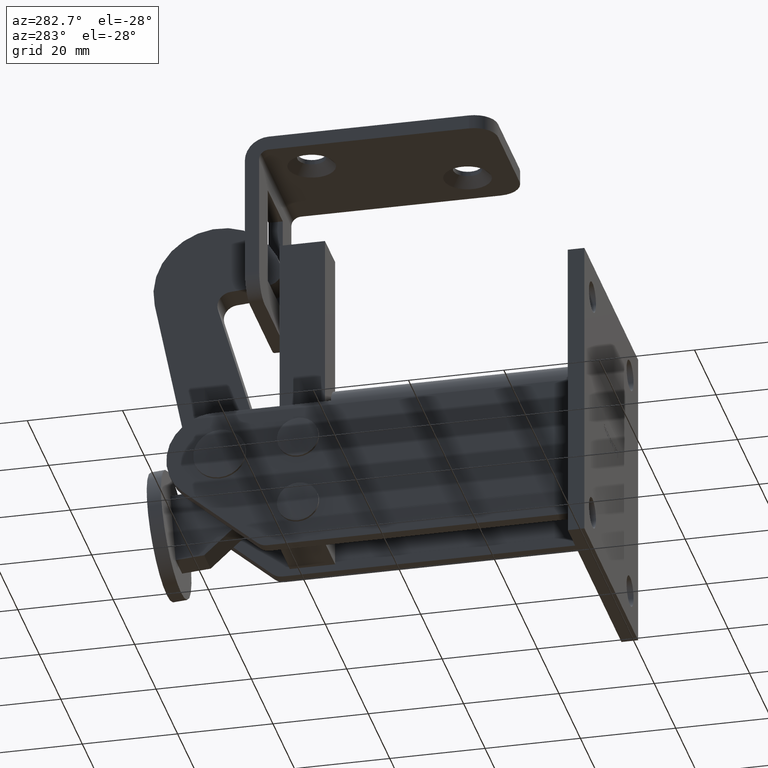
[diagram: clean part render]
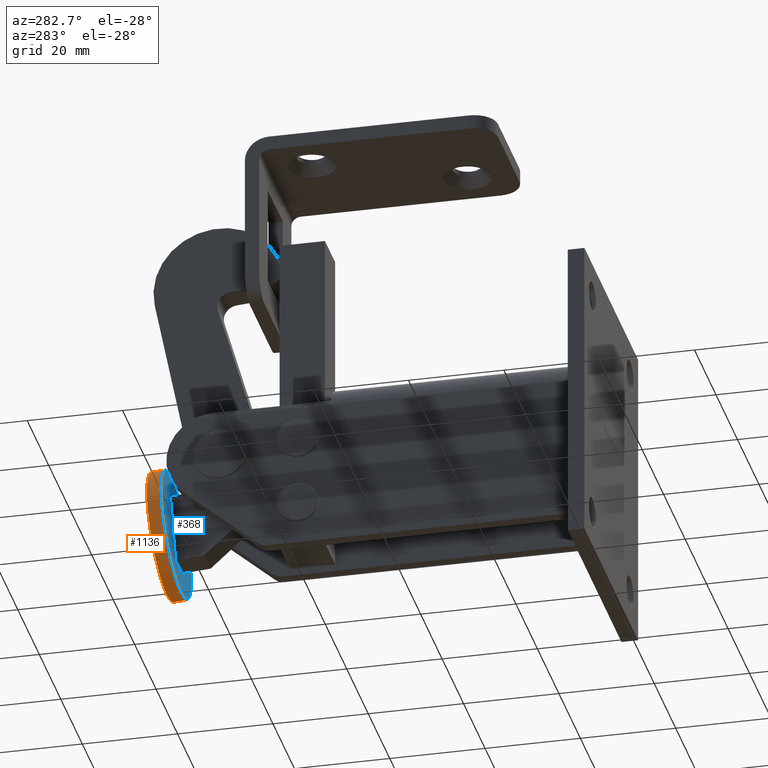
[diagram: same view with the hole feature highlighted: cylindrical wall and planar end face, labeled with their STEP entity ids]
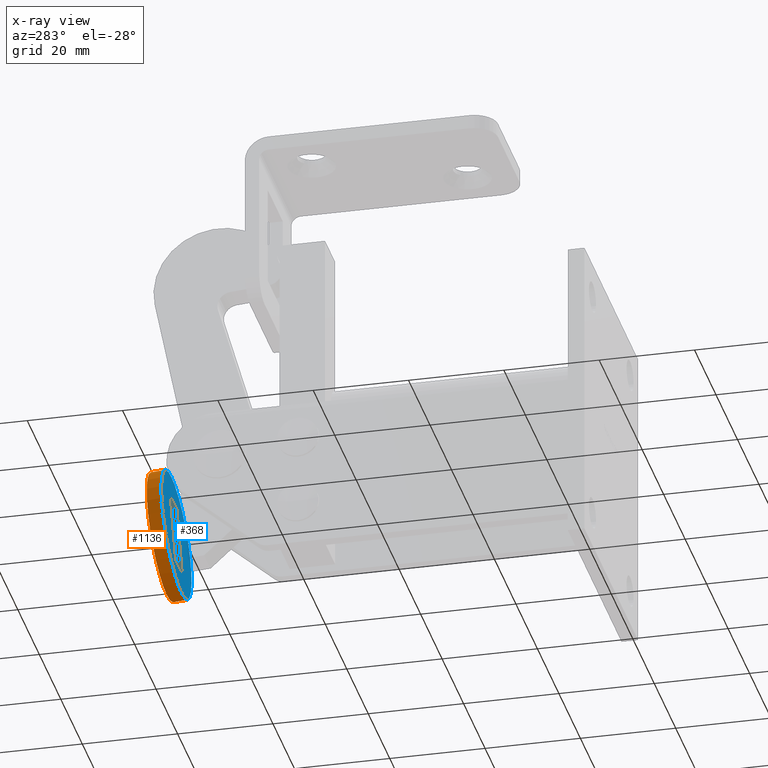
[diagram: x-ray of the same camera — body ghosted, the hole faces saturated]
A machine part, auxiliary view. The highlighted faces form one hole feature of diameter 27 mm: the cylindrical wall (entity #1136, orange) and its adjacent planar end face (entity #368, blue) — they share a circular edge in the B-rep.
The next image is the same camera in x-ray (body ghosted, the hole faces saturated) — the bore reads through the body.
Wall:
#519 = CIRCLE ( 'NONE', #12851, 13.50000000000000000 ) ;
#537 = EDGE_LOOP ( 'NONE', ( #10625 ) ) ;
#1136 = ADVANCED_FACE ( 'NONE', ( #4110, #11900 ), #4268, .T. ) ;
#2002 = DIRECTION ( 'NONE',  ( 0.0000000000000000000, -2.569960705150825400E-016, 1.000000000000000000 ) ) ;
#3406 = DIRECTION ( 'NONE',  ( 0.0000000000000000000, -2.569960705150825400E-016, 1.000000000000000000 ) ) ;
#3715 = CIRCLE ( 'NONE', #4985, 13.50000000000000000 ) ;
#4110 = FACE_OUTER_BOUND ( 'NONE', #537, .T. ) ;
#4268 = CYLINDRICAL_SURFACE ( 'NONE', #12435, 13.50000000000000200 ) ;
#4685 = CARTESIAN_POINT ( 'NONE',  ( 9.258329801554016100E-016, 30.00000000000000400, -12.02999999999998900 ) ) ;
#4985 = AXIS2_PLACEMENT_3D ( 'NONE', #6215, #9295, #2002 ) ;
#5675 = EDGE_LOOP ( 'NONE', ( #8829 ) ) ;
#5683 = DIRECTION ( 'NONE',  ( 0.0000000000000000000, 2.569960705150824900E-016, -1.000000000000000000 ) ) ;
#6215 = CARTESIAN_POINT ( 'NONE',  ( 9.258329801554016100E-016, 30.00000000000000400, -12.02999999999998900 ) ) ;
#6529 = DIRECTION ( 'NONE',  ( 0.0000000000000000000, 1.000000000000000000, 2.312964634635743000E-016 ) ) ;
#6531 = VERTEX_POINT ( 'NONE', #6574 ) ;
#6574 = CARTESIAN_POINT ( 'NONE',  ( 9.258329801554016100E-016, 30.00000000000000000, 1.470000000000011300 ) ) ;
#7985 = EDGE_CURVE ( 'NONE', #6531, #6531, #3715, .T. ) ;
#8648 = CARTESIAN_POINT ( 'NONE',  ( 9.258329801554016100E-016, 27.00000000000000000, 1.470000000000011300 ) ) ;
#8829 = ORIENTED_EDGE ( 'NONE', *, *, #11916, .T. ) ;
#9295 = DIRECTION ( 'NONE',  ( 0.0000000000000000000, 1.000000000000000000, 2.312964634635743000E-016 ) ) ;
#9480 = CARTESIAN_POINT ( 'NONE',  ( 9.258329801554016100E-016, 27.00000000000000400, -12.02999999999998900 ) ) ;
#10625 = ORIENTED_EDGE ( 'NONE', *, *, #7985, .F. ) ;
#11656 = DIRECTION ( 'NONE',  ( -0.0000000000000000000, -1.000000000000000000, -2.312964634635743000E-016 ) ) ;
#11900 = FACE_OUTER_BOUND ( 'NONE', #5675, .T. ) ;
#11916 = EDGE_CURVE ( 'NONE', #12605, #12605, #519, .T. ) ;
#12435 = AXIS2_PLACEMENT_3D ( 'NONE', #4685, #11656, #5683 ) ;
#12605 = VERTEX_POINT ( 'NONE', #8648 ) ;
#12851 = AXIS2_PLACEMENT_3D ( 'NONE', #9480, #6529, #3406 ) ;
End face:
#368 = ADVANCED_FACE ( 'NONE', ( #7776, #12093 ), #2790, .F. ) ;
#519 = CIRCLE ( 'NONE', #12851, 13.50000000000000000 ) ;
#688 = EDGE_LOOP ( 'NONE', ( #1713, #6820, #8253, #11054 ) ) ;
#927 = LINE ( 'NONE', #13238, #5063 ) ;
#1237 = CARTESIAN_POINT ( 'NONE',  ( 3.000000000000000000, 27.00000000000000700, -19.52999999999999000 ) ) ;
#1713 = ORIENTED_EDGE ( 'NONE', *, *, #11207, .F. ) ;
#1795 = LINE ( 'NONE', #4895, #9593 ) ;
#1811 = CARTESIAN_POINT ( 'NONE',  ( 9.258329801554016100E-016, 27.00000000000000400, -12.02999999999998900 ) ) ;
#2294 = DIRECTION ( 'NONE',  ( -1.000000000000000000, -0.0000000000000000000, -0.0000000000000000000 ) ) ;
#2645 = VERTEX_POINT ( 'NONE', #8006 ) ;
#2790 = PLANE ( 'NONE',  #6076 ) ;
#2898 = DIRECTION ( 'NONE',  ( -1.000000000000000000, -0.0000000000000000000, -0.0000000000000000000 ) ) ;
#3406 = DIRECTION ( 'NONE',  ( 0.0000000000000000000, -2.569960705150825400E-016, 1.000000000000000000 ) ) ;
#3612 = EDGE_CURVE ( 'NONE', #2645, #6504, #927, .T. ) ;
#3866 = DIRECTION ( 'NONE',  ( 0.0000000000000000000, -2.312964634635743000E-016, 1.000000000000000000 ) ) ;
#4281 = DIRECTION ( 'NONE',  ( 0.0000000000000000000, 0.0000000000000000000, 1.000000000000000000 ) ) ;
#4455 = CARTESIAN_POINT ( 'NONE',  ( 3.000000000000000000, 27.00000000000000000, -19.52999999999998700 ) ) ;
#4472 = EDGE_CURVE ( 'NONE', #11269, #2645, #9425, .T. ) ;
#4895 = CARTESIAN_POINT ( 'NONE',  ( 3.000000000000000000, 27.00000000000000000, -4.529999999999988700 ) ) ;
#5063 = VECTOR ( 'NONE', #12315, 1000.000000000000000 ) ;
#6076 = AXIS2_PLACEMENT_3D ( 'NONE', #1811, #8918, #3866 ) ;
#6504 = VERTEX_POINT ( 'NONE', #12500 ) ;
#6529 = DIRECTION ( 'NONE',  ( 0.0000000000000000000, 1.000000000000000000, 2.312964634635743000E-016 ) ) ;
#6820 = ORIENTED_EDGE ( 'NONE', *, *, #4472, .T. ) ;
#7776 = FACE_OUTER_BOUND ( 'NONE', #9466, .T. ) ;
#8006 = CARTESIAN_POINT ( 'NONE',  ( -3.000000000000000000, 27.00000000000000700, -19.52999999999999000 ) ) ;
#8253 = ORIENTED_EDGE ( 'NONE', *, *, #3612, .T. ) ;
#8648 = CARTESIAN_POINT ( 'NONE',  ( 9.258329801554016100E-016, 27.00000000000000000, 1.470000000000011300 ) ) ;
#8918 = DIRECTION ( 'NONE',  ( 0.0000000000000000000, 1.000000000000000000, 2.312964634635743000E-016 ) ) ;
#9231 = CARTESIAN_POINT ( 'NONE',  ( 3.000000000000000000, 27.00000000000000000, -19.52999999999998700 ) ) ;
#9350 = LINE ( 'NONE', #9231, #10019 ) ;
#9379 = CARTESIAN_POINT ( 'NONE',  ( 3.000000000000000000, 27.00000000000000400, -4.529999999999988700 ) ) ;
#9425 = LINE ( 'NONE', #4455, #12950 ) ;
#9466 = EDGE_LOOP ( 'NONE', ( #11608 ) ) ;
#9480 = CARTESIAN_POINT ( 'NONE',  ( 9.258329801554016100E-016, 27.00000000000000400, -12.02999999999998900 ) ) ;
#9593 = VECTOR ( 'NONE', #2898, 1000.000000000000000 ) ;
#10019 = VECTOR ( 'NONE', #4281, 1000.000000000000000 ) ;
#10689 = VERTEX_POINT ( 'NONE', #9379 ) ;
#11054 = ORIENTED_EDGE ( 'NONE', *, *, #13044, .F. ) ;
#11207 = EDGE_CURVE ( 'NONE', #11269, #10689, #9350, .T. ) ;
#11269 = VERTEX_POINT ( 'NONE', #1237 ) ;
#11608 = ORIENTED_EDGE ( 'NONE', *, *, #11916, .F. ) ;
#11916 = EDGE_CURVE ( 'NONE', #12605, #12605, #519, .T. ) ;
#12093 = FACE_BOUND ( 'NONE', #688, .T. ) ;
#12315 = DIRECTION ( 'NONE',  ( 0.0000000000000000000, 0.0000000000000000000, 1.000000000000000000 ) ) ;
#12500 = CARTESIAN_POINT ( 'NONE',  ( -3.000000000000000000, 27.00000000000000000, -4.529999999999988700 ) ) ;
#12605 = VERTEX_POINT ( 'NONE', #8648 ) ;
#12851 = AXIS2_PLACEMENT_3D ( 'NONE', #9480, #6529, #3406 ) ;
#12950 = VECTOR ( 'NONE', #2294, 1000.000000000000000 ) ;
#13044 = EDGE_CURVE ( 'NONE', #10689, #6504, #1795, .T. ) ;
#13238 = CARTESIAN_POINT ( 'NONE',  ( -3.000000000000000000, 27.00000000000000000, -19.52999999999998700 ) ) ;